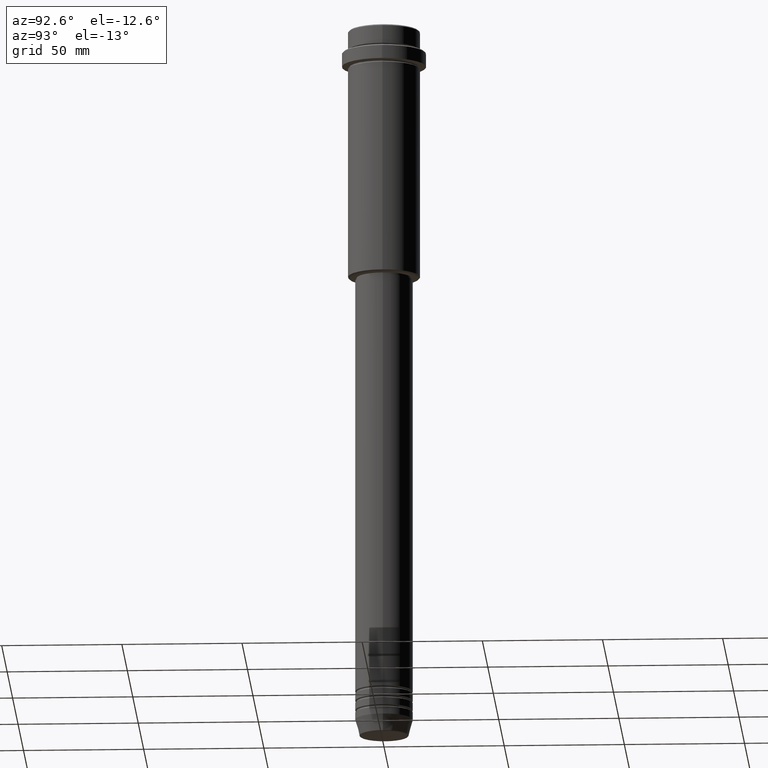
[diagram: clean part render]
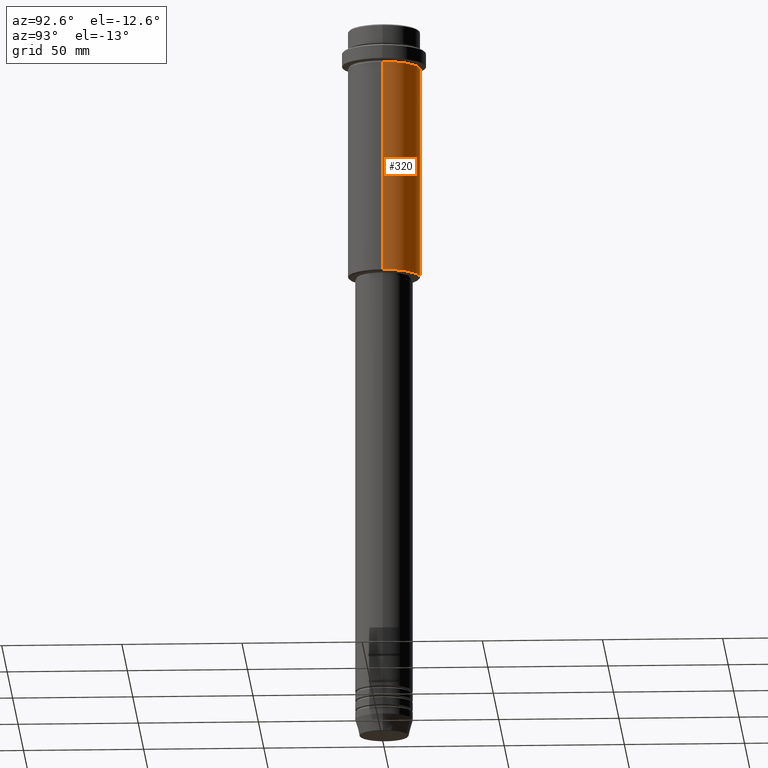
[diagram: same view with one face highlighted and labeled with its STEP entity id]
A machine part, auxiliary view. The second image highlights one B-rep face of the part: STEP entity #320.
In plain terms, the highlighted cylindrical surface (edge-blend (fillet) strip) has radius 15 mm, axis along (-0, -0, 1).
Its self-contained STEP definition (entity closure, byte-faithful):
#66 = DIRECTION ( 'NONE',  ( -0.000000000000000000, -0.000000000000000000, 1.000000000000000000 ) ) ;
#80 = ORIENTED_EDGE ( 'NONE', *, *, #447, .F. ) ;
#111 = AXIS2_PLACEMENT_3D ( 'NONE', #246, #133, #1023 ) ;
#133 = DIRECTION ( 'NONE',  ( -0.000000000000000000, -0.000000000000000000, 1.000000000000000000 ) ) ;
#152 = DIRECTION ( 'NONE',  ( -1.000000000000000000, 0.000000000000000000, 0.000000000000000000 ) ) ;
#168 = VERTEX_POINT ( 'NONE', #1229 ) ;
#181 = DIRECTION ( 'NONE',  ( 1.000000000000000000, 0.000000000000000000, 0.000000000000000000 ) ) ;
#243 = ORIENTED_EDGE ( 'NONE', *, *, #965, .T. ) ;
#246 = CARTESIAN_POINT ( 'NONE',  ( 0.000000000000000000, 0.000000000000000000, -16.00000000000000000 ) ) ;
#269 = VECTOR ( 'NONE', #419, 1000.000000000000000 ) ;
#276 = EDGE_CURVE ( 'NONE', #811, #736, #1305, .T. ) ;
#316 = CARTESIAN_POINT ( 'NONE',  ( 15.00000000000000000, 0.000000000000000000, 0.000000000000000000 ) ) ;
#320 = ADVANCED_FACE ( 'NONE', ( #1345 ), #801, .T. ) ;
#345 = VECTOR ( 'NONE', #400, 1000.000000000000000 ) ;
#363 = CARTESIAN_POINT ( 'NONE',  ( 15.00000000000000000, 0.000000000000000000, -104.4999999999999289 ) ) ;
#400 = DIRECTION ( 'NONE',  ( -0.000000000000000000, -0.000000000000000000, 1.000000000000000000 ) ) ;
#419 = DIRECTION ( 'NONE',  ( -0.000000000000000000, -0.000000000000000000, 1.000000000000000000 ) ) ;
#447 = EDGE_CURVE ( 'NONE', #811, #168, #1382, .T. ) ;
#451 = CARTESIAN_POINT ( 'NONE',  ( -15.00000000000000355, 1.836970198721029983E-15, -16.00000000000000000 ) ) ;
#456 = AXIS2_PLACEMENT_3D ( 'NONE', #907, #1355, #152 ) ;
#470 = CARTESIAN_POINT ( 'NONE',  ( 0.000000000000000000, 0.000000000000000000, 0.000000000000000000 ) ) ;
#624 = AXIS2_PLACEMENT_3D ( 'NONE', #470, #66, #181 ) ;
#730 = CIRCLE ( 'NONE', #111, 15.00000000000000178 ) ;
#736 = VERTEX_POINT ( 'NONE', #949 ) ;
#801 = CYLINDRICAL_SURFACE ( 'NONE', #624, 15.00000000000000000 ) ;
#811 = VERTEX_POINT ( 'NONE', #363 ) ;
#863 = ORIENTED_EDGE ( 'NONE', *, *, #1096, .F. ) ;
#907 = CARTESIAN_POINT ( 'NONE',  ( 0.000000000000000000, 0.000000000000000000, -104.4999999999999289 ) ) ;
#949 = CARTESIAN_POINT ( 'NONE',  ( -15.00000000000000000, 1.836970198721029589E-15, -104.4999999999999289 ) ) ;
#965 = EDGE_CURVE ( 'NONE', #736, #1326, #1404, .T. ) ;
#1023 = DIRECTION ( 'NONE',  ( 1.000000000000000000, 0.000000000000000000, 0.000000000000000000 ) ) ;
#1096 = EDGE_CURVE ( 'NONE', #168, #1326, #730, .T. ) ;
#1193 = CARTESIAN_POINT ( 'NONE',  ( -15.00000000000000000, 1.836970198721029589E-15, 0.000000000000000000 ) ) ;
#1211 = EDGE_LOOP ( 'NONE', ( #1340, #243, #863, #80 ) ) ;
#1229 = CARTESIAN_POINT ( 'NONE',  ( 15.00000000000000178, 0.000000000000000000, -16.00000000000000000 ) ) ;
#1305 = CIRCLE ( 'NONE', #456, 15.00000000000000000 ) ;
#1326 = VERTEX_POINT ( 'NONE', #451 ) ;
#1340 = ORIENTED_EDGE ( 'NONE', *, *, #276, .T. ) ;
#1345 = FACE_OUTER_BOUND ( 'NONE', #1211, .T. ) ;
#1355 = DIRECTION ( 'NONE',  ( -0.000000000000000000, -0.000000000000000000, 1.000000000000000000 ) ) ;
#1382 = LINE ( 'NONE', #316, #345 ) ;
#1404 = LINE ( 'NONE', #1193, #269 ) ;